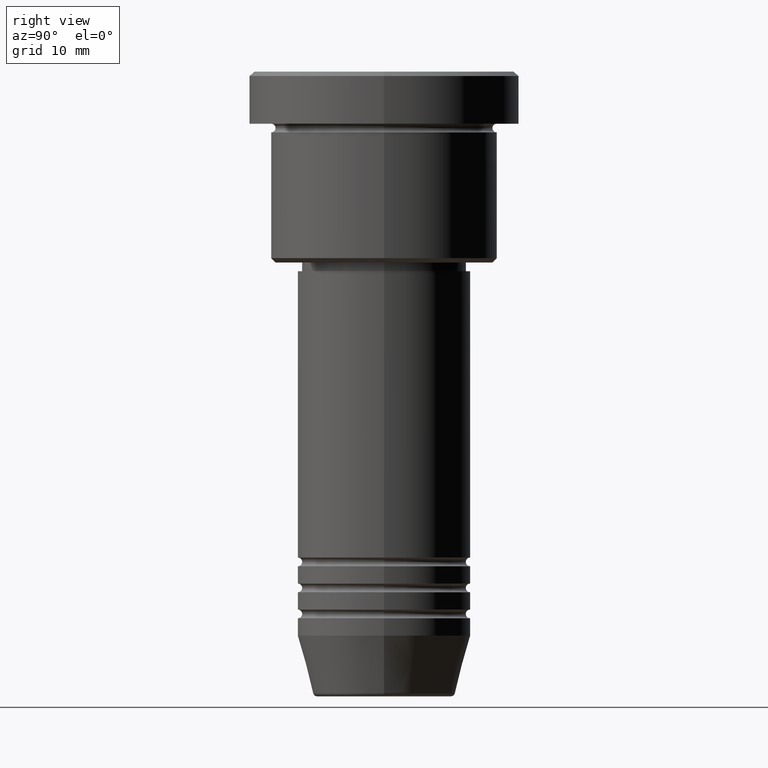
[diagram: clean part render]
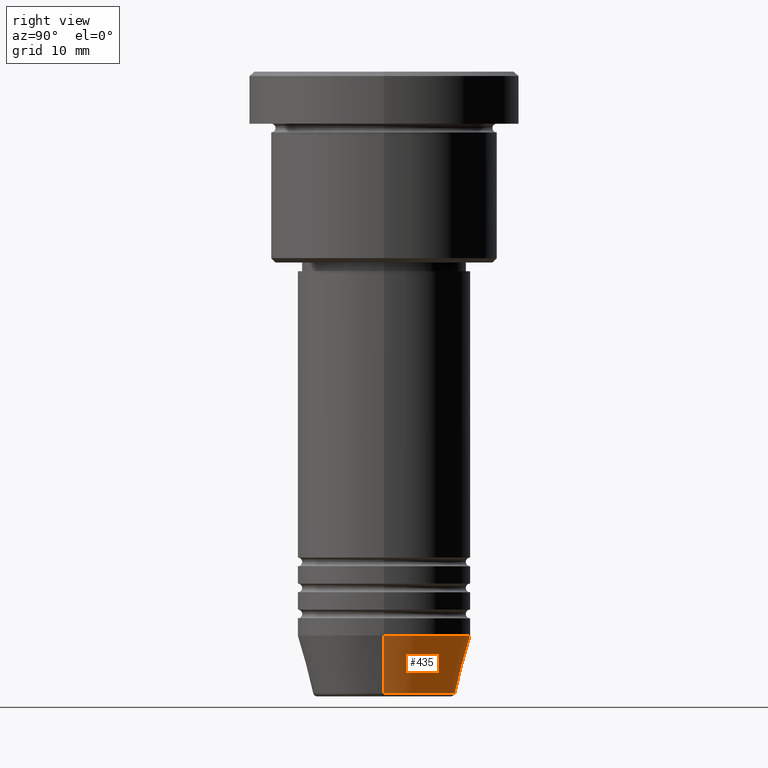
[diagram: same view with one face highlighted and labeled with its STEP entity id]
A machine part, right view. The second image highlights one B-rep face of the part: STEP entity #435.
In plain terms, the highlighted conical surface has half-angle 15 deg.
Its self-contained STEP definition (entity closure, byte-faithful):
#15 = VERTEX_POINT ( 'NONE', #857 ) ;
#38 = CONICAL_SURFACE ( 'NONE', #152, 10.00000000000000000, 0.2617993877991500740 ) ;
#44 = DIRECTION ( 'NONE',  ( 1.000000000000000000, 0.000000000000000000, 0.000000000000000000 ) ) ;
#49 = CARTESIAN_POINT ( 'NONE',  ( 0.000000000000000000, 0.000000000000000000, -65.00000000000000000 ) ) ;
#92 = AXIS2_PLACEMENT_3D ( 'NONE', #119, #215, #576 ) ;
#119 = CARTESIAN_POINT ( 'NONE',  ( 0.000000000000000000, 0.000000000000000000, -71.62940952255127058 ) ) ;
#152 = AXIS2_PLACEMENT_3D ( 'NONE', #49, #401, #600 ) ;
#214 = DIRECTION ( 'NONE',  ( -0.000000000000000000, -0.000000000000000000, 1.000000000000000000 ) ) ;
#215 = DIRECTION ( 'NONE',  ( -0.000000000000000000, -0.000000000000000000, 1.000000000000000000 ) ) ;
#252 = EDGE_CURVE ( 'NONE', #15, #710, #653, .T. ) ;
#298 = EDGE_CURVE ( 'NONE', #710, #526, #491, .T. ) ;
#348 = ORIENTED_EDGE ( 'NONE', *, *, #298, .F. ) ;
#401 = DIRECTION ( 'NONE',  ( -0.000000000000000000, -0.000000000000000000, 1.000000000000000000 ) ) ;
#435 = ADVANCED_FACE ( 'NONE', ( #1060 ), #38, .T. ) ;
#468 = AXIS2_PLACEMENT_3D ( 'NONE', #475, #214, #44 ) ;
#473 = CARTESIAN_POINT ( 'NONE',  ( 10.00000000000000000, 0.000000000000000000, -65.00000000000000000 ) ) ;
#475 = CARTESIAN_POINT ( 'NONE',  ( 0.000000000000000000, 0.000000000000000000, -65.00000000000000000 ) ) ;
#491 = CIRCLE ( 'NONE', #468, 10.00000000000000000 ) ;
#505 = CIRCLE ( 'NONE', #92, 8.223655072137187716 ) ;
#526 = VERTEX_POINT ( 'NONE', #976 ) ;
#576 = DIRECTION ( 'NONE',  ( 1.000000000000000000, 0.000000000000000000, 0.000000000000000000 ) ) ;
#587 = ORIENTED_EDGE ( 'NONE', *, *, #252, .F. ) ;
#600 = DIRECTION ( 'NONE',  ( 1.000000000000000000, 0.000000000000000000, 0.000000000000000000 ) ) ;
#610 = LINE ( 'NONE', #717, #791 ) ;
#640 = CARTESIAN_POINT ( 'NONE',  ( -8.223655072137187716, 1.115877042642911856E-15, -71.62940952255127058 ) ) ;
#653 = LINE ( 'NONE', #828, #703 ) ;
#689 = ORIENTED_EDGE ( 'NONE', *, *, #896, .T. ) ;
#703 = VECTOR ( 'NONE', #1016, 1000.000000000000000 ) ;
#704 = EDGE_CURVE ( 'NONE', #15, #980, #505, .T. ) ;
#710 = VERTEX_POINT ( 'NONE', #473 ) ;
#717 = CARTESIAN_POINT ( 'NONE',  ( -10.00000000000000000, 1.224646799147353256E-15, -65.00000000000000000 ) ) ;
#779 = EDGE_LOOP ( 'NONE', ( #1064, #689, #348, #587 ) ) ;
#791 = VECTOR ( 'NONE', #1077, 1000.000000000000000 ) ;
#828 = CARTESIAN_POINT ( 'NONE',  ( 10.00000000000000000, 0.000000000000000000, -65.00000000000000000 ) ) ;
#857 = CARTESIAN_POINT ( 'NONE',  ( 8.223655072137187716, 0.000000000000000000, -71.62940952255127058 ) ) ;
#896 = EDGE_CURVE ( 'NONE', #980, #526, #610, .T. ) ;
#976 = CARTESIAN_POINT ( 'NONE',  ( -10.00000000000000000, 1.224646799147353256E-15, -65.00000000000000000 ) ) ;
#980 = VERTEX_POINT ( 'NONE', #640 ) ;
#1016 = DIRECTION ( 'NONE',  ( 0.2588190451025213501, 0.000000000000000000, 0.9659258262890680902 ) ) ;
#1060 = FACE_OUTER_BOUND ( 'NONE', #779, .T. ) ;
#1064 = ORIENTED_EDGE ( 'NONE', *, *, #704, .T. ) ;
#1077 = DIRECTION ( 'NONE',  ( -0.2588190451025213501, 3.169619151431772337E-17, 0.9659258262890680902 ) ) ;